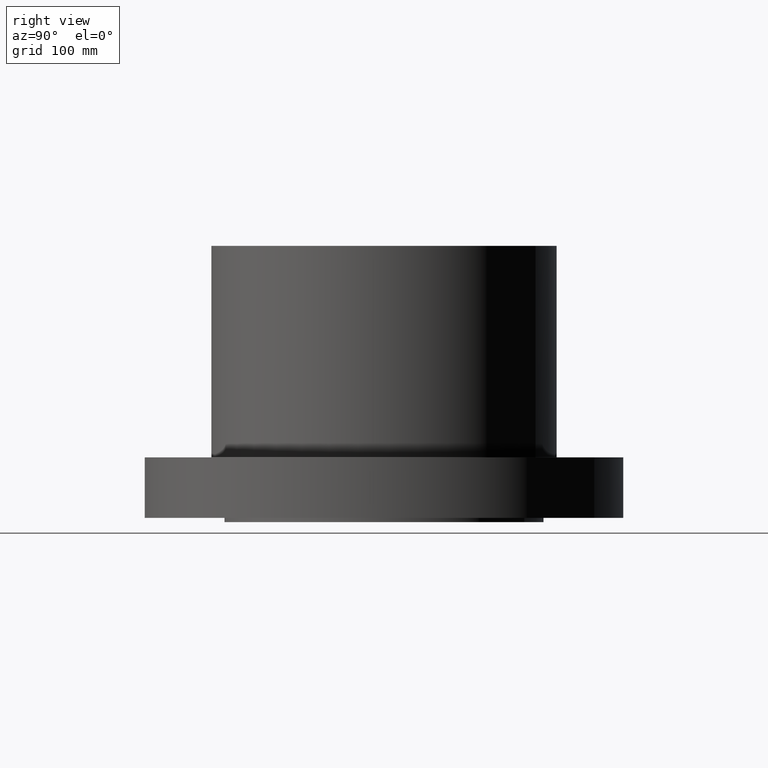
[diagram: clean part render]
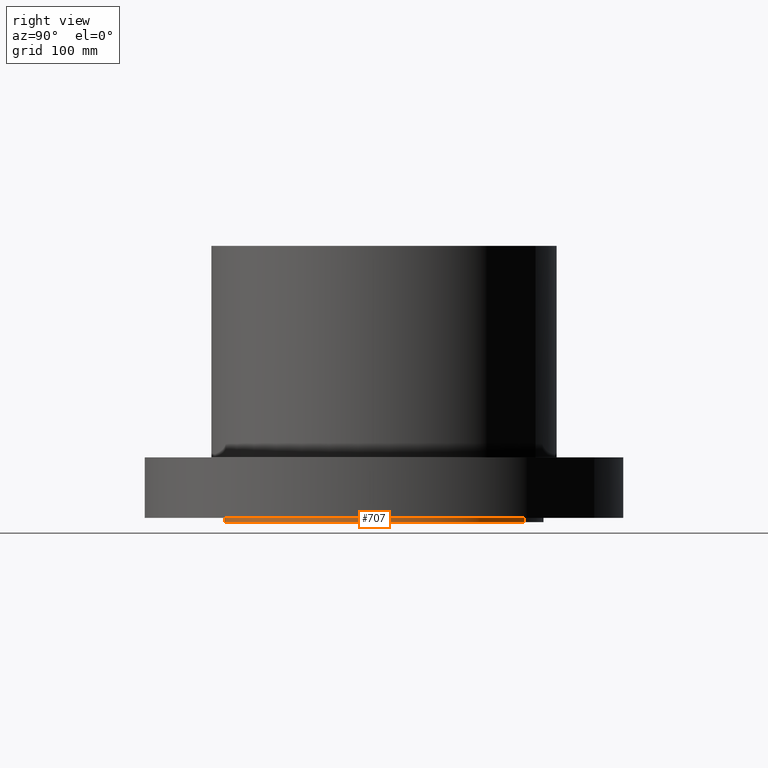
[diagram: same view with one face highlighted and labeled with its STEP entity id]
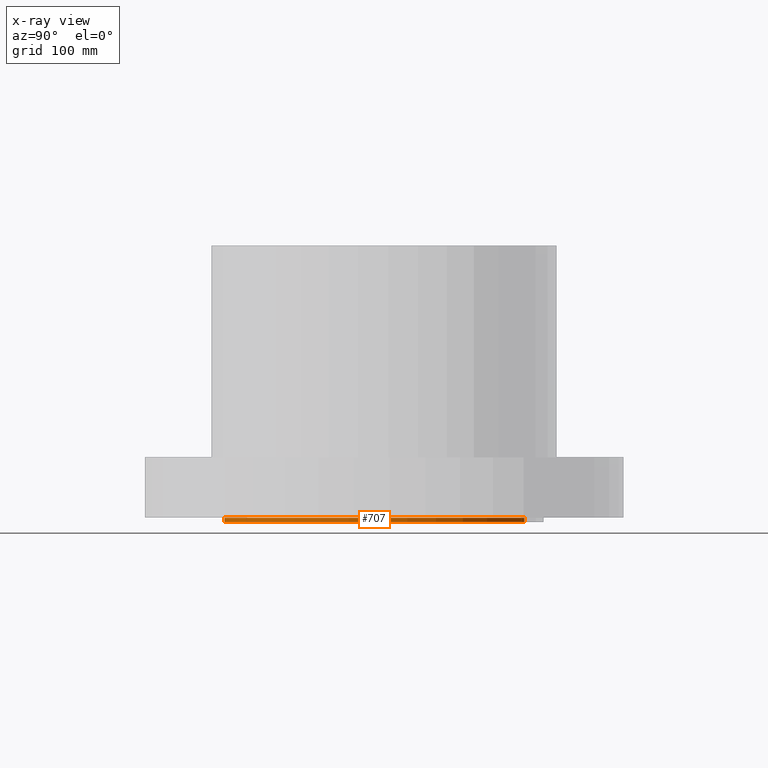
[diagram: x-ray of the same camera — body ghosted, the highlighted face saturated]
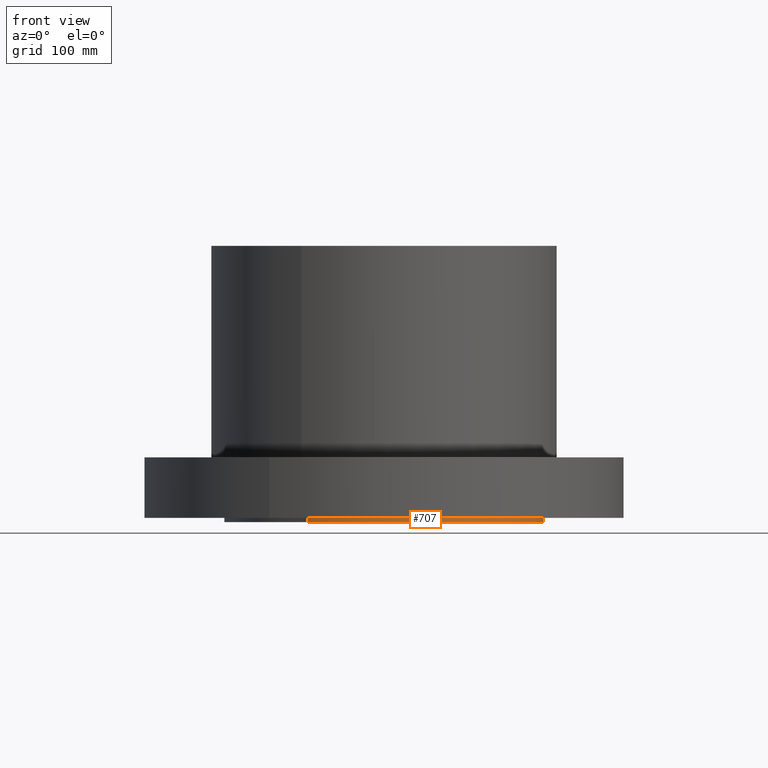
[diagram: same view with one face highlighted and labeled with its STEP entity id]
A machine part, right view. The second image highlights one B-rep face of the part: STEP entity #707.
The next image is the same camera in x-ray: the body ghosted, the highlighted face saturated — about 0% of this face is hidden behind the body in this view.
A second angle (front view) of the same face is appended — the face is thin or edge-on in the first view.
In plain terms, the highlighted cylindrical surface (partial cylindrical patch) has radius 234.95 mm, axis along (0, 0, -1).
Its self-contained STEP definition (entity closure, byte-faithful):
#109=AXIS2_PLACEMENT_3D('Circle Axis2P3D',#107,#108,$) ;
#667=AXIS2_PLACEMENT_3D('Circle Axis2P3D',#665,#666,$) ;
#682=AXIS2_PLACEMENT_3D('Cylinder Axis2P3D',#679,#680,#681) ;
#107=CARTESIAN_POINT('Axis2P3D Location',(0.,0.,0.)) ;
#111=CARTESIAN_POINT('Vertex',(4.43468623211,8.11763869752,1.1189649382E-015)) ;
#113=CARTESIAN_POINT('Vertex',(-4.43468623211,-8.11763869752,1.1189649382E-015)) ;
#660=CARTESIAN_POINT('Vertex',(-4.43468623211,-8.11763869752,-0.250000000001)) ;
#662=CARTESIAN_POINT('Vertex',(4.43468623211,8.11763869752,-0.250000000001)) ;
#665=CARTESIAN_POINT('Axis2P3D Location',(0.,0.,-0.250000000001)) ;
#679=CARTESIAN_POINT('Axis2P3D Location',(0.,0.,7.75000000003)) ;
#684=CARTESIAN_POINT('Line Origine',(-4.43468623211,-8.11763869752,-0.125)) ;
#689=CARTESIAN_POINT('Line Origine',(4.43468623211,8.11763869752,-0.125)) ;
#108=DIRECTION('Axis2P3D Direction',(0.,0.,-0.0393700787402)) ;
#666=DIRECTION('Axis2P3D Direction',(0.,0.,-0.0393700787402)) ;
#680=DIRECTION('Axis2P3D Direction',(0.,0.,-0.0393700787402)) ;
#681=DIRECTION('Axis2P3D XDirection',(0.0188750212049,0.0345504945626,0.)) ;
#685=DIRECTION('Vector Direction',(0.,0.,-0.0393700787402)) ;
#690=DIRECTION('Vector Direction',(0.,0.,-0.0393700787402)) ;
#686=VECTOR('Line Direction',#685,0.0393700787402) ;
#691=VECTOR('Line Direction',#690,0.0393700787402) ;
#702=ORIENTED_EDGE('',*,*,#669,.F.) ;
#703=ORIENTED_EDGE('',*,*,#693,.T.) ;
#704=ORIENTED_EDGE('',*,*,#115,.T.) ;
#705=ORIENTED_EDGE('',*,*,#688,.F.) ;
#707=ADVANCED_FACE('PartBody',(#706),#683,.T.) ;
#110=CIRCLE('generated circle',#109,9.25000000004) ;
#668=CIRCLE('generated circle',#667,9.25000000004) ;
#683=CYLINDRICAL_SURFACE('generated cylinder',#682,9.25000000004) ;
#115=EDGE_CURVE('',#112,#114,#110,.T.) ;
#669=EDGE_CURVE('',#663,#661,#668,.T.) ;
#688=EDGE_CURVE('',#661,#114,#687,.F.) ;
#693=EDGE_CURVE('',#663,#112,#692,.F.) ;
#701=EDGE_LOOP('',(#702,#703,#704,#705)) ;
#706=FACE_OUTER_BOUND('',#701,.T.) ;
#687=LINE('Line',#684,#686) ;
#692=LINE('Line',#689,#691) ;
#112=VERTEX_POINT('',#111) ;
#114=VERTEX_POINT('',#113) ;
#661=VERTEX_POINT('',#660) ;
#663=VERTEX_POINT('',#662) ;